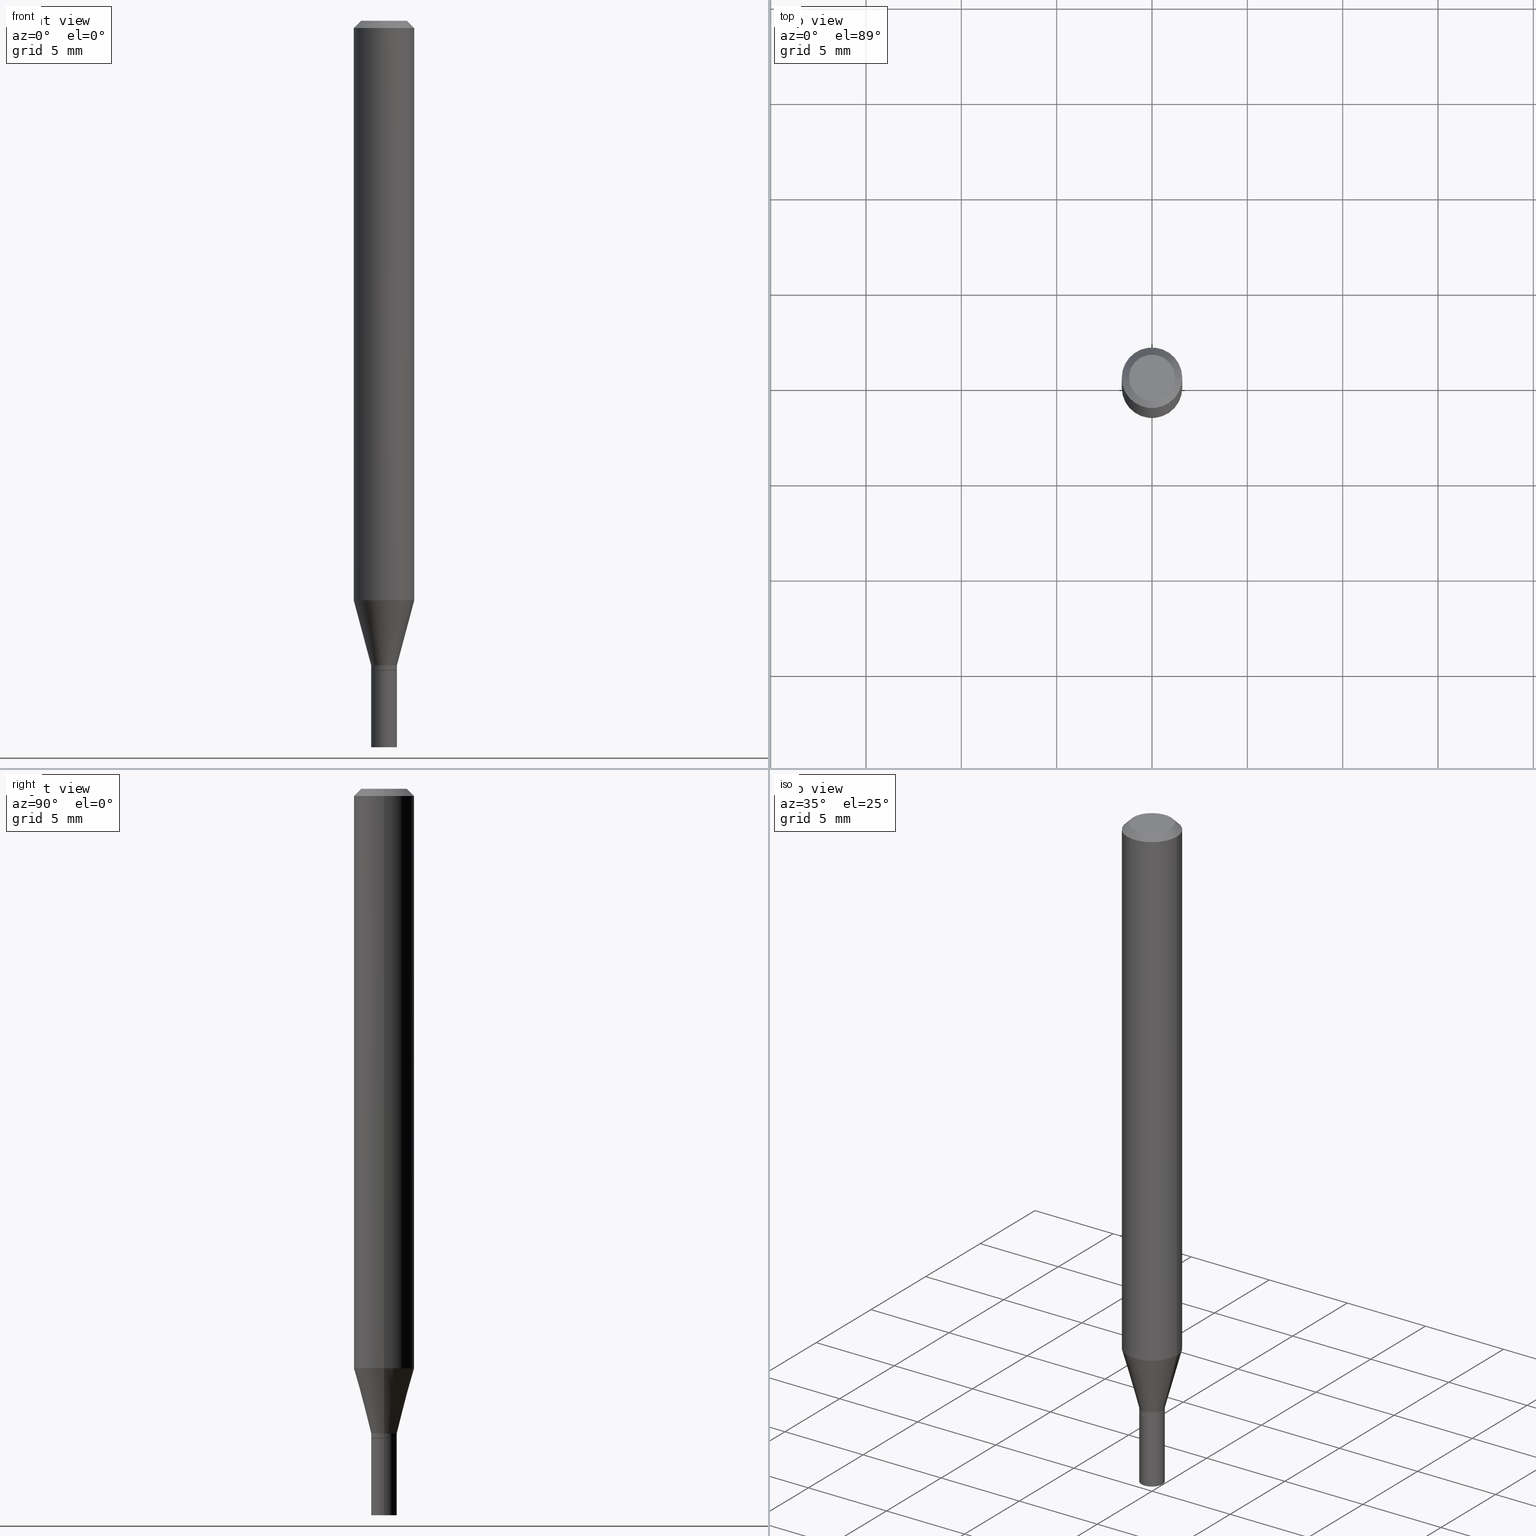
[diagram: canonical four-view strip — front | top / right | iso, engineering-drawing reading convention]
A machine part, canonical four-view strip (front | top / right | iso — engineering-drawing reading convention). The complete STEP part file that produces these views, byte-faithful:
ISO-10303-21;
HEADER;
FILE_DESCRIPTION (( 'STEP AP203' ),
    '1' );
FILE_NAME ('00562.STEP',
    '2024-03-19T21:43:18',
    ( '' ),
    ( '' ),
    'SwSTEP 2.0',
    'SolidWorks 2023',
    '' );
FILE_SCHEMA (( 'CONFIG_CONTROL_DESIGN' ));
ENDSEC;

DATA;
#1 = DIRECTION ( 'NONE',  ( 1.000000000000000000, -6.982962677686258822E-15, 0.000000000000000000 ) ) ;
#2 = DIRECTION ( 'NONE',  ( -2.445468806185136597E-29, 3.491481338843145583E-15, 1.000000000000000000 ) ) ;
#3 = ORIENTED_EDGE ( 'NONE', *, *, #406, .F. ) ;
#4 = VECTOR ( 'NONE', #144, 39.37007874015748143 ) ;
#5 = FACE_OUTER_BOUND ( 'NONE', #74, .T. ) ;
#6 = DIRECTION ( 'NONE',  ( 0.000000000000000000, 0.000000000000000000, 1.000000000000000000 ) ) ;
#7 = EDGE_LOOP ( 'NONE', ( #33, #29 ) ) ;
#8 = EDGE_CURVE ( 'NONE', #216, #94, #353, .T. ) ;
#9 = PERSON_AND_ORGANIZATION_ROLE ( 'creator' ) ;
#10 = APPROVAL_STATUS ( 'not_yet_approved' ) ;
#11 = CIRCLE ( 'NONE', #21, 0.02649999999999992292 ) ;
#12 = APPROVAL_PERSON_ORGANIZATION ( #46, #88, #38 ) ;
#13 = ORIENTED_EDGE ( 'NONE', *, *, #177, .F. ) ;
#14 = EDGE_CURVE ( 'NONE', #105, #390, #370, .T. ) ;
#15 = DIRECTION ( 'NONE',  ( 1.000000000000000000, -6.982962677686266711E-15, 0.000000000000000000 ) ) ;
#16 = LINE ( 'NONE', #441, #304 ) ;
#17 = ORIENTED_EDGE ( 'NONE', *, *, #153, .T. ) ;
#18 = ORIENTED_EDGE ( 'NONE', *, *, #71, .F. ) ;
#19 = DIRECTION ( 'NONE',  ( -1.000000000000000000, 6.982962677686266711E-15, 0.000000000000000000 ) ) ;
#20 = CC_DESIGN_DATE_AND_TIME_ASSIGNMENT ( #366, #190, ( #422 ) ) ;
#21 = AXIS2_PLACEMENT_3D ( 'NONE', #175, #95, #118 ) ;
#22 = AXIS2_PLACEMENT_3D ( 'NONE', #187, #6, #303 ) ;
#23 = ORIENTED_EDGE ( 'NONE', *, *, #429, .F. ) ;
#24 = CYLINDRICAL_SURFACE ( 'NONE', #448, 0.06250000000000000000 ) ;
#25 = DIRECTION ( 'NONE',  ( -2.445468806185136597E-29, 3.491481338843145583E-15, 1.000000000000000000 ) ) ;
#26 = LINE ( 'NONE', #169, #167 ) ;
#27 = ORIENTED_EDGE ( 'NONE', *, *, #128, .T. ) ;
#28 = CIRCLE ( 'NONE', #294, 0.02649999999999999925 ) ;
#29 = ORIENTED_EDGE ( 'NONE', *, *, #8, .F. ) ;
#30 = DIRECTION ( 'NONE',  ( -2.445468806185136597E-29, 3.491481338843145583E-15, 1.000000000000000000 ) ) ;
#31 = ORGANIZATION ( 'UNSPECIFIED', 'UNSPECIFIED', '' ) ;
#32 = CARTESIAN_POINT ( 'NONE',  ( 0.000000000000000000, 0.000000000000000000, 0.000000000000000000 ) ) ;
#33 = ORIENTED_EDGE ( 'NONE', *, *, #348, .F. ) ;
#34 = ORIENTED_EDGE ( 'NONE', *, *, #277, .T. ) ;
#35 = CC_DESIGN_PERSON_AND_ORGANIZATION_ASSIGNMENT ( #365, #271, ( #422 ) ) ;
#36 = AXIS2_PLACEMENT_3D ( 'NONE', #102, #447, #19 ) ;
#37 = CARTESIAN_POINT ( 'NONE',  ( 3.279373669094269136E-29, -4.682076475388659531E-15, -1.341000000000000192 ) ) ;
#38 = APPROVAL_ROLE ( '' ) ;
#39 = SECURITY_CLASSIFICATION_LEVEL ( 'unclassified' ) ;
#40 = CYLINDRICAL_SURFACE ( 'NONE', #189, 0.02649999999999992639 ) ;
#41 = DIRECTION ( 'NONE',  ( -2.445468806185136597E-29, 3.491481338843145583E-15, 1.000000000000000000 ) ) ;
#42 = CARTESIAN_POINT ( 'NONE',  ( 0.02649999999999992639, -4.832210172958911994E-15, -1.331000000000000183 ) ) ;
#43 = CC_DESIGN_PERSON_AND_ORGANIZATION_ASSIGNMENT ( #229, #226, ( #197 ) ) ;
#44 = CIRCLE ( 'NONE', #255, 0.06250000000000000000 ) ;
#45 =( NAMED_UNIT ( * ) PLANE_ANGLE_UNIT ( ) SI_UNIT ( $, .RADIAN. ) );
#46 = PERSON_AND_ORGANIZATION ( #298, #31 ) ;
#47 = COORDINATED_UNIVERSAL_TIME_OFFSET ( 5, 0, .BEHIND. ) ;
#48 = EDGE_LOOP ( 'NONE', ( #27, #136, #3, #13 ) ) ;
#49 = ADVANCED_FACE ( 'NONE', ( #234 ), #24, .T. ) ;
#50 = AXIS2_PLACEMENT_3D ( 'NONE', #400, #41, #135 ) ;
#51 = PRODUCT_DEFINITION_FORMATION_WITH_SPECIFIED_SOURCE ( 'ANY', '', #197, .NOT_KNOWN. ) ;
#52 = CYLINDRICAL_SURFACE ( 'NONE', #313, 0.06250000000000000000 ) ;
#53 = ORIENTED_EDGE ( 'NONE', *, *, #429, .T. ) ;
#54 = ORIENTED_EDGE ( 'NONE', *, *, #319, .F. ) ;
#55 = CARTESIAN_POINT ( 'NONE',  ( 0.000000000000000000, 0.000000000000000000, 0.000000000000000000 ) ) ;
#56 = AXIS2_PLACEMENT_3D ( 'NONE', #242, #347, #411 ) ;
#57 = ORIENTED_EDGE ( 'NONE', *, *, #62, .T. ) ;
#58 = CARTESIAN_POINT ( 'NONE',  ( -0.02649999999999992639, 1.882938249764260262E-16, -1.303517798917546247E-30 ) ) ;
#59 = ORIENTED_EDGE ( 'NONE', *, *, #98, .F. ) ;
#60 = DIRECTION ( 'NONE',  ( 1.000000000000000000, -6.982962677686258822E-15, 0.000000000000000000 ) ) ;
#61 = DIRECTION ( 'NONE',  ( 1.000000000000000000, -6.982962677686277755E-15, 0.000000000000000000 ) ) ;
#62 = EDGE_CURVE ( 'NONE', #253, #421, #210, .T. ) ;
#63 = EDGE_LOOP ( 'NONE', ( #238, #331, #385, #164 ) ) ;
#64 = AXIS2_PLACEMENT_3D ( 'NONE', #350, #389, #112 ) ;
#65 = VERTEX_POINT ( 'NONE', #305 ) ;
#66 = ORIENTED_EDGE ( 'NONE', *, *, #416, .F. ) ;
#67 = ORIENTED_EDGE ( 'NONE', *, *, #367, .F. ) ;
#68 = ORIENTED_EDGE ( 'NONE', *, *, #153, .F. ) ;
#69 = DIRECTION ( 'NONE',  ( -2.445468806185136597E-29, 3.491481338843145583E-15, 1.000000000000000000 ) ) ;
#70 = ORIENTED_EDGE ( 'NONE', *, *, #308, .F. ) ;
#71 = EDGE_CURVE ( 'NONE', #373, #65, #254, .T. ) ;
#72 = DIRECTION ( 'NONE',  ( -2.445468806185136597E-29, 3.491481338843145583E-15, 1.000000000000000000 ) ) ;
#73 = DIRECTION ( 'NONE',  ( -2.445468806185136597E-29, 3.491481338843145583E-15, 1.000000000000000000 ) ) ;
#74 = EDGE_LOOP ( 'NONE', ( #23, #444, #284, #356 ) ) ;
#75 = CARTESIAN_POINT ( 'NONE',  ( 3.668203209277705088E-31, -5.237222008264718399E-17, -0.01499999999999999944 ) ) ;
#76 = AXIS2_PLACEMENT_3D ( 'NONE', #414, #109, #344 ) ;
#77 = EDGE_LOOP ( 'NONE', ( #457, #53, #80, #67 ) ) ;
#78 = LOCAL_TIME ( 17, 43, 18.00000000000000000, #437 ) ;
#79 = PLANE ( 'NONE',  #276 ) ;
#80 = ORIENTED_EDGE ( 'NONE', *, *, #128, .F. ) ;
#81 = APPROVAL ( #332, 'UNSPECIFIED' ) ;
#82 = APPLICATION_PROTOCOL_DEFINITION ( 'international standard', 'config_control_design', 1994, #384 ) ;
#83 = DIRECTION ( 'NONE',  ( 1.000000000000000000, -6.982962677686277755E-15, 0.000000000000000000 ) ) ;
#84 = DIRECTION ( 'NONE',  ( 2.438088387897960049E-29, -3.491481338843145188E-15, -1.000000000000000000 ) ) ;
#85 = PERSON_AND_ORGANIZATION ( #298, #31 ) ;
#86 = VECTOR ( 'NONE', #352, 39.37007874015748143 ) ;
#87 = DIRECTION ( 'NONE',  ( -2.438088387897960049E-29, 3.491481338843145188E-15, 1.000000000000000000 ) ) ;
#88 = APPROVAL ( #398, 'UNSPECIFIED' ) ;
#89 = PERSON_AND_ORGANIZATION ( #298, #31 ) ;
#90 = CLOSED_SHELL ( 'NONE', ( #125, #107, #191, #289, #326, #235, #49, #299, #215, #205, #374, #184 ) ) ;
#91 = CIRCLE ( 'NONE', #354, 0.02599999999999999534 ) ;
#92 = AXIS2_PLACEMENT_3D ( 'NONE', #296, #459, #249 ) ;
#93 = LENGTH_MEASURE_WITH_UNIT ( LENGTH_MEASURE( 0.02539999999999999897 ), #334 );
#94 = VERTEX_POINT ( 'NONE', #163 ) ;
#95 = DIRECTION ( 'NONE',  ( -2.445468806185136597E-29, 3.491481338843145583E-15, 1.000000000000000000 ) ) ;
#96 = DIRECTION ( 'NONE',  ( 1.000000000000000000, -6.982962677686266711E-15, 4.876176775795935793E-29 ) ) ;
#97 = DIRECTION ( 'NONE',  ( -2.445468806185136877E-29, 3.491481338843145188E-15, 1.000000000000000000 ) ) ;
#98 = EDGE_CURVE ( 'NONE', #257, #200, #417, .T. ) ;
#99 = CARTESIAN_POINT ( 'NONE',  ( 3.668203209277704895E-29, -5.237222008264718177E-15, -1.500000000000000222 ) ) ;
#100 = VERTEX_POINT ( 'NONE', #245 ) ;
#101 = DIRECTION ( 'NONE',  ( -2.445468806185136877E-29, 3.491481338843145188E-15, 1.000000000000000000 ) ) ;
#102 = CARTESIAN_POINT ( 'NONE',  ( 3.668203209277705088E-31, -5.237222008264718399E-17, -0.01499999999999999944 ) ) ;
#103 = AXIS2_PLACEMENT_3D ( 'NONE', #120, #362, #449 ) ;
#104 = CIRCLE ( 'NONE', #419, 0.02649999999999999925 ) ;
#105 = VERTEX_POINT ( 'NONE', #346 ) ;
#106 = FACE_OUTER_BOUND ( 'NONE', #63, .T. ) ;
#107 = ADVANCED_FACE ( 'NONE', ( #106 ), #114, .T. ) ;
#108 = CARTESIAN_POINT ( 'NONE',  ( 3.279373669094269136E-29, -4.682076475388659531E-15, -1.341000000000000192 ) ) ;
#109 = DIRECTION ( 'NONE',  ( 2.438088387897960049E-29, -3.491481338843145188E-15, -1.000000000000000000 ) ) ;
#110 = VERTEX_POINT ( 'NONE', #351 ) ;
#111 = EDGE_LOOP ( 'NONE', ( #358, #203 ) ) ;
#112 = DIRECTION ( 'NONE',  ( 1.000000000000000000, -6.982962677686265922E-15, 4.876176775795935232E-29 ) ) ;
#113 = ORIENTED_EDGE ( 'NONE', *, *, #416, .T. ) ;
#114 = CONICAL_SURFACE ( 'NONE', #387, 0.02599999999999999534, 0.7853981633974739252 ) ;
#115 = EDGE_CURVE ( 'NONE', #218, #253, #318, .T. ) ;
#116 = ORIENTED_EDGE ( 'NONE', *, *, #177, .T. ) ;
#117 = DIRECTION ( 'NONE',  ( -2.445468806185136597E-29, 3.491481338843145583E-15, 1.000000000000000000 ) ) ;
#118 = DIRECTION ( 'NONE',  ( 1.000000000000000000, -6.982962677686261189E-15, 0.000000000000000000 ) ) ;
#119 = DIRECTION ( 'NONE',  ( 1.000000000000000000, -6.982962677686260400E-15, 0.000000000000000000 ) ) ;
#120 = CARTESIAN_POINT ( 'NONE',  ( -3.350520365439544480E-45, 4.783655101941405986E-31, 1.370093274943982539E-16 ) ) ;
#121 = CONICAL_SURFACE ( 'NONE', #36, 0.06250000000000000000, 0.7853981633974438381 ) ;
#122 = APPROVAL_DATE_TIME ( #402, #88 ) ;
#123 = AXIS2_PLACEMENT_3D ( 'NONE', #375, #73, #15 ) ;
#124 = CARTESIAN_POINT ( 'NONE',  ( 3.254918981032417030E-29, -4.647161662000227094E-15, -1.331000000000000183 ) ) ;
#125 = ADVANCED_FACE ( 'NONE', ( #206 ), #396, .T. ) ;
#126 = APPROVAL_ROLE ( '' ) ;
#127 = DIRECTION ( 'NONE',  ( -2.445468806185136597E-29, 3.491481338843145583E-15, 1.000000000000000000 ) ) ;
#128 = EDGE_CURVE ( 'NONE', #390, #105, #287, .T. ) ;
#129 = AXIS2_PLACEMENT_3D ( 'NONE', #267, #87, #464 ) ;
#130 = CONICAL_SURFACE ( 'NONE', #315, 0.02599999999999999534, 0.7853981633974739252 ) ;
#131 = CALENDAR_DATE ( 2024, 19, 3 ) ;
#132 = ORIENTED_EDGE ( 'NONE', *, *, #71, .T. ) ;
#133 = ORIENTED_EDGE ( 'NONE', *, *, #62, .F. ) ;
#134 = DIRECTION ( 'NONE',  ( 1.000000000000000000, -6.982962677686258822E-15, 0.000000000000000000 ) ) ;
#135 = DIRECTION ( 'NONE',  ( 1.000000000000000000, -6.982962677686267499E-15, 4.852736867747366768E-29 ) ) ;
#136 = ORIENTED_EDGE ( 'NONE', *, *, #159, .T. ) ;
#137 = CIRCLE ( 'NONE', #221, 0.02599999999999999534 ) ;
#138 = EDGE_CURVE ( 'NONE', #110, #218, #137, .T. ) ;
#139 = DIRECTION ( 'NONE',  ( -2.445468806185136597E-29, 3.491481338843145583E-15, 1.000000000000000000 ) ) ;
#140 = CARTESIAN_POINT ( 'NONE',  ( 0.000000000000000000, 0.000000000000000000, 0.000000000000000000 ) ) ;
#141 = CARTESIAN_POINT ( 'NONE',  ( 0.02649999999999999925, -4.867124986347346010E-15, -1.341000000000000192 ) ) ;
#142 = ORIENTED_EDGE ( 'NONE', *, *, #319, .T. ) ;
#143 = EDGE_CURVE ( 'NONE', #110, #257, #148, .T. ) ;
#144 = DIRECTION ( 'NONE',  ( -2.445468806185136877E-29, 3.491481338843145188E-15, 1.000000000000000000 ) ) ;
#145 = VECTOR ( 'NONE', #180, 39.37007874015748143 ) ;
#146 = FACE_OUTER_BOUND ( 'NONE', #317, .T. ) ;
#147 = CC_DESIGN_APPROVAL ( #88, ( #339 ) ) ;
#148 = LINE ( 'NONE', #423, #145 ) ;
#149 = CARTESIAN_POINT ( 'NONE',  ( 2.926360883044138788E-29, -4.178067774991542695E-15, -1.196646170927520458 ) ) ;
#150 = DIRECTION ( 'NONE',  ( 1.000000000000000000, -6.982962677686265922E-15, 4.876176775795935793E-29 ) ) ;
#151 = FACE_OUTER_BOUND ( 'NONE', #450, .T. ) ;
#152 = CYLINDRICAL_SURFACE ( 'NONE', #92, 0.02649999999999999925 ) ;
#153 = EDGE_CURVE ( 'NONE', #192, #65, #44, .T. ) ;
#154 = ADVANCED_BREP_SHAPE_REPRESENTATION ( '00562', ( #412, #413, #22 ), #453 ) ;
#155 = DIRECTION ( 'NONE',  ( 1.000000000000000000, -6.982962677686265922E-15, 4.876176775795935232E-29 ) ) ;
#156 = AXIS2_PLACEMENT_3D ( 'NONE', #219, #84, #432 ) ;
#157 = CARTESIAN_POINT ( 'NONE',  ( 3.254918981032417030E-29, -4.647161662000227094E-15, -1.331000000000000183 ) ) ;
#158 = DATE_AND_TIME ( #405, #440 ) ;
#159 = EDGE_CURVE ( 'NONE', #105, #192, #212, .T. ) ;
#160 = PERSON_AND_ORGANIZATION ( #298, #31 ) ;
#161 = VECTOR ( 'NONE', #101, 39.37007874015748143 ) ;
#162 = APPROVAL_PERSON_ORGANIZATION ( #160, #81, #126 ) ;
#163 = CARTESIAN_POINT ( 'NONE',  ( 0.02649999999999999925, -5.422270519223404655E-15, -1.500000000000000222 ) ) ;
#164 = ORIENTED_EDGE ( 'NONE', *, *, #115, .F. ) ;
#165 = EDGE_CURVE ( 'NONE', #421, #200, #228, .T. ) ;
#166 = ORIENTED_EDGE ( 'NONE', *, *, #445, .F. ) ;
#167 = VECTOR ( 'NONE', #213, 39.37007874015748143 ) ;
#168 = CC_DESIGN_APPROVAL ( #201, ( #422 ) ) ;
#169 = CARTESIAN_POINT ( 'NONE',  ( -0.02649999999999999925, 1.882938249764265439E-16, -1.303517798917549926E-30 ) ) ;
#170 = EDGE_CURVE ( 'NONE', #253, #257, #11, .T. ) ;
#171 = CARTESIAN_POINT ( 'NONE',  ( 0.06250000000000000000, -4.811533449433679005E-16, -0.01499999999999999944 ) ) ;
#172 = CLOSED_SHELL ( 'NONE', ( #265, #364, #456, #273 ) ) ;
#173 = CIRCLE ( 'NONE', #56, 0.02649999999999992292 ) ;
#174 = FACE_OUTER_BOUND ( 'NONE', #77, .T. ) ;
#175 = CARTESIAN_POINT ( 'NONE',  ( 3.278150934691176334E-29, -4.680330734719238028E-15, -1.340500000000000469 ) ) ;
#176 = ORIENTED_EDGE ( 'NONE', *, *, #165, .F. ) ;
#177 = EDGE_CURVE ( 'NONE', #390, #65, #397, .T. ) ;
#178 = ORIENTED_EDGE ( 'NONE', *, *, #251, .F. ) ;
#179 = DIRECTION ( 'NONE',  ( -2.445468806185136877E-29, 3.491481338843145188E-15, 1.000000000000000000 ) ) ;
#180 = DIRECTION ( 'NONE',  ( -0.7071067811865656694, 7.493145998870420424E-15, 0.7071067811865294761 ) ) ;
#181 = ORIENTED_EDGE ( 'NONE', *, *, #406, .T. ) ;
#182 = AXIS2_PLACEMENT_3D ( 'NONE', #275, #127, #119 ) ;
#183 = CIRCLE ( 'NONE', #123, 0.06250000000000000000 ) ;
#184 = ADVANCED_FACE ( 'NONE', ( #399 ), #40, .T. ) ;
#185 = FACE_OUTER_BOUND ( 'NONE', #349, .T. ) ;
#186 = DATE_AND_TIME ( #330, #261 ) ;
#187 = CARTESIAN_POINT ( 'NONE',  ( 0.000000000000000000, 0.000000000000000000, 0.000000000000000000 ) ) ;
#188 = FACE_OUTER_BOUND ( 'NONE', #460, .T. ) ;
#189 = AXIS2_PLACEMENT_3D ( 'NONE', #393, #72, #155 ) ;
#190 = DATE_TIME_ROLE ( 'creation_date' ) ;
#191 = ADVANCED_FACE ( 'NONE', ( #151 ), #282, .T. ) ;
#192 = VERTEX_POINT ( 'NONE', #222 ) ;
#193 = EDGE_LOOP ( 'NONE', ( #18, #178, #443, #17 ) ) ;
#194 = CALENDAR_DATE ( 2024, 19, 3 ) ;
#195 = FACE_OUTER_BOUND ( 'NONE', #7, .T. ) ;
#196 = CARTESIAN_POINT ( 'NONE',  ( 0.02599999999999999534, -4.863633505008502214E-15, -1.341000000000000192 ) ) ;
#197 = PRODUCT ( '00562', '00562', '', ( #336 ) ) ;
#198 = DIRECTION ( 'NONE',  ( 0.7071067811865443531, -7.319954787623245001E-15, -0.7071067811865506814 ) ) ;
#199 = VECTOR ( 'NONE', #179, 39.37007874015748143 ) ;
#200 = VERTEX_POINT ( 'NONE', #292 ) ;
#201 = APPROVAL ( #10, 'UNSPECIFIED' ) ;
#202 = DIRECTION ( 'NONE',  ( -0.2588190451025211836, 5.211531920934547886E-15, 0.9659258262890679791 ) ) ;
#203 = ORIENTED_EDGE ( 'NONE', *, *, #138, .F. ) ;
#204 = AXIS2_PLACEMENT_3D ( 'NONE', #157, #335, #428 ) ;
#205 = ADVANCED_FACE ( 'NONE', ( #286 ), #79, .F. ) ;
#206 = FACE_OUTER_BOUND ( 'NONE', #376, .T. ) ;
#207 = EDGE_LOOP ( 'NONE', ( #59, #250, #57, #345 ) ) ;
#208 = ORIENTED_EDGE ( 'NONE', *, *, #348, .T. ) ;
#209 = ORIENTED_EDGE ( 'NONE', *, *, #285, .T. ) ;
#210 = LINE ( 'NONE', #281, #4 ) ;
#211 = PLANE ( 'NONE',  #76 ) ;
#212 = LINE ( 'NONE', #248, #86 ) ;
#213 = DIRECTION ( 'NONE',  ( -2.445468806185136877E-29, 3.491481338843145188E-15, 1.000000000000000000 ) ) ;
#214 = ORIENTED_EDGE ( 'NONE', *, *, #277, .F. ) ;
#215 = ADVANCED_FACE ( 'NONE', ( #188 ), #288, .F. ) ;
#216 = VERTEX_POINT ( 'NONE', #436 ) ;
#217 = DESIGN_CONTEXT ( 'detailed design', #314, 'design' ) ;
#218 = VERTEX_POINT ( 'NONE', #196 ) ;
#219 = CARTESIAN_POINT ( 'NONE',  ( 3.316907271900976096E-16, 0.04749999999999999362, -9.734069984785028182E-17 ) ) ;
#220 = VERTEX_POINT ( 'NONE', #329 ) ;
#221 = AXIS2_PLACEMENT_3D ( 'NONE', #312, #69, #383 ) ;
#222 = CARTESIAN_POINT ( 'NONE',  ( -0.06250000000000000000, -1.671130787687032468E-15, -0.01499999999999999944 ) ) ;
#223 = CARTESIAN_POINT ( 'NONE',  ( 0.02649999999999992639, -4.832210172958911994E-15, -1.331000000000000183 ) ) ;
#224 = APPROVAL_DATE_TIME ( #158, #81 ) ;
#225 = DIRECTION ( 'NONE',  ( -2.438088387897960049E-29, 3.491481338843145188E-15, 1.000000000000000000 ) ) ;
#226 = PERSON_AND_ORGANIZATION_ROLE ( 'design_owner' ) ;
#227 = CARTESIAN_POINT ( 'NONE',  ( 3.279373669094269136E-29, -4.682076475388659531E-15, -1.341000000000000192 ) ) ;
#228 = CIRCLE ( 'NONE', #407, 0.02649999999999992639 ) ;
#229 = PERSON_AND_ORGANIZATION ( #298, #31 ) ;
#230 = CC_DESIGN_APPROVAL ( #81, ( #51 ) ) ;
#231 = CC_DESIGN_PERSON_AND_ORGANIZATION_ASSIGNMENT ( #368, #263, ( #51 ) ) ;
#232 =( NAMED_UNIT ( * ) SI_UNIT ( $, .STERADIAN. ) SOLID_ANGLE_UNIT ( ) );
#233 = COORDINATED_UNIVERSAL_TIME_OFFSET ( 5, 0, .BEHIND. ) ;
#234 = FACE_OUTER_BOUND ( 'NONE', #278, .T. ) ;
#235 = ADVANCED_FACE ( 'NONE', ( #5 ), #404, .T. ) ;
#236 = CONICAL_SURFACE ( 'NONE', #182, 0.02649999999999992639, 0.2617993877991499074 ) ;
#237 =( CONVERSION_BASED_UNIT ( 'INCH', #93 ) LENGTH_UNIT ( ) NAMED_UNIT ( #357 ) );
#238 = ORIENTED_EDGE ( 'NONE', *, *, #355, .T. ) ;
#239 = LINE ( 'NONE', #243, #380 ) ;
#240 = CARTESIAN_POINT ( 'NONE',  ( 2.926360883044138788E-29, -4.178067774991542695E-15, -1.196646170927520458 ) ) ;
#241 = CC_DESIGN_PERSON_AND_ORGANIZATION_ASSIGNMENT ( #293, #302, ( #339 ) ) ;
#242 = CARTESIAN_POINT ( 'NONE',  ( 3.278150934691176334E-29, -4.680330734719238028E-15, -1.340500000000000469 ) ) ;
#243 = CARTESIAN_POINT ( 'NONE',  ( -0.06250000000000000000, 3.840629472727444916E-16, -0.01499999999999999944 ) ) ;
#244 = ORIENTED_EDGE ( 'NONE', *, *, #285, .F. ) ;
#245 = CARTESIAN_POINT ( 'NONE',  ( -0.04749999999999999362, 3.578768372314212971E-16, 1.370093274943958627E-16 ) ) ;
#246 = AXIS2_PLACEMENT_3D ( 'NONE', #75, #320, #461 ) ;
#247 = EDGE_LOOP ( 'NONE', ( #208, #34, #66, #166 ) ) ;
#248 = CARTESIAN_POINT ( 'NONE',  ( -0.06250000000000000000, 4.440892098500626162E-16, -3.074334431409316114E-30 ) ) ;
#249 = DIRECTION ( 'NONE',  ( 1.000000000000000000, -6.982962677686266711E-15, 4.876176775795935793E-29 ) ) ;
#250 = ORIENTED_EDGE ( 'NONE', *, *, #308, .T. ) ;
#251 = EDGE_CURVE ( 'NONE', #100, #373, #452, .T. ) ;
#252 = DIRECTION ( 'NONE',  ( -2.445468806185136597E-29, 3.491481338843145583E-15, 1.000000000000000000 ) ) ;
#253 = VERTEX_POINT ( 'NONE', #309 ) ;
#254 = LINE ( 'NONE', #171, #328 ) ;
#255 = AXIS2_PLACEMENT_3D ( 'NONE', #454, #321, #462 ) ;
#256 = EDGE_LOOP ( 'NONE', ( #409, #420, #458, #70 ) ) ;
#257 = VERTEX_POINT ( 'NONE', #424 ) ;
#258 = CARTESIAN_POINT ( 'NONE',  ( 3.279373669094269136E-29, -4.682076475388659531E-15, -1.341000000000000192 ) ) ;
#259 = CIRCLE ( 'NONE', #50, 0.04749999999999999362 ) ;
#260 = CARTESIAN_POINT ( 'NONE',  ( 0.06250000000000000000, -4.364351673553916694E-16, 3.047610484872459871E-30 ) ) ;
#261 = LOCAL_TIME ( 17, 43, 18.00000000000000000, #47 ) ;
#262 = DATE_TIME_ROLE ( 'classification_date' ) ;
#263 = PERSON_AND_ORGANIZATION_ROLE ( 'design_supplier' ) ;
#264 = CARTESIAN_POINT ( 'NONE',  ( 0.04749999999999999362, -4.035134999187576158E-16, 1.370093274944008177E-16 ) ) ;
#265 = ADVANCED_FACE ( 'NONE', ( #463 ), #391, .T. ) ;
#266 = COORDINATED_UNIVERSAL_TIME_OFFSET ( 5, 0, .BEHIND. ) ;
#267 = CARTESIAN_POINT ( 'NONE',  ( 3.576687321579069994E-29, -5.368277968210015545E-15, -1.500000000000000222 ) ) ;
#268 = AXIS2_PLACEMENT_3D ( 'NONE', #240, #377, #342 ) ;
#269 = DIRECTION ( 'NONE',  ( -2.445468806185136597E-29, 3.491481338843145583E-15, 1.000000000000000000 ) ) ;
#270 = DIRECTION ( 'NONE',  ( -2.445468806185136597E-29, 3.491481338843145583E-15, 1.000000000000000000 ) ) ;
#271 = PERSON_AND_ORGANIZATION_ROLE ( 'creator' ) ;
#272 = DIRECTION ( 'NONE',  ( -2.445468806185136597E-29, 3.491481338843145583E-15, 1.000000000000000000 ) ) ;
#273 = ADVANCED_FACE ( 'NONE', ( #146 ), #211, .F. ) ;
#274 = PLANE ( 'NONE',  #129 ) ;
#275 = CARTESIAN_POINT ( 'NONE',  ( 3.254918981032417030E-29, -4.647161662000227094E-15, -1.331000000000000183 ) ) ;
#276 = AXIS2_PLACEMENT_3D ( 'NONE', #37, #225, #150 ) ;
#277 = EDGE_CURVE ( 'NONE', #216, #220, #26, .T. ) ;
#278 = EDGE_LOOP ( 'NONE', ( #300, #340, #116, #68 ) ) ;
#279 = ORIENTED_EDGE ( 'NONE', *, *, #98, .T. ) ;
#280 = VERTEX_POINT ( 'NONE', #141 ) ;
#281 = CARTESIAN_POINT ( 'NONE',  ( 0.02649999999999992639, -1.850485109586855413E-16, 1.292186845585919279E-30 ) ) ;
#282 = CONICAL_SURFACE ( 'NONE', #246, 0.06250000000000000000, 0.7853981633974438381 ) ;
#283 = LOCAL_TIME ( 17, 43, 18.00000000000000000, #266 ) ;
#284 = ORIENTED_EDGE ( 'NONE', *, *, #367, .T. ) ;
#285 = EDGE_CURVE ( 'NONE', #373, #100, #259, .T. ) ;
#286 = FACE_OUTER_BOUND ( 'NONE', #111, .T. ) ;
#287 = CIRCLE ( 'NONE', #394, 0.06250000000000000000 ) ;
#288 = PLANE ( 'NONE',  #156 ) ;
#289 = ADVANCED_FACE ( 'NONE', ( #372 ), #52, .T. ) ;
#290 = DIRECTION ( 'NONE',  ( 0.2588190451025211836, 1.565188264969622559E-15, 0.9659258262890679791 ) ) ;
#291 = ORIENTED_EDGE ( 'NONE', *, *, #451, .F. ) ;
#292 = CARTESIAN_POINT ( 'NONE',  ( -0.02649999999999992639, -4.096423201082640425E-15, -1.331000000000000183 ) ) ;
#293 = PERSON_AND_ORGANIZATION ( #298, #31 ) ;
#294 = AXIS2_PLACEMENT_3D ( 'NONE', #361, #2, #83 ) ;
#295 = CC_DESIGN_SECURITY_CLASSIFICATION ( #339, ( #51 ) ) ;
#296 = CARTESIAN_POINT ( 'NONE',  ( 0.000000000000000000, 0.000000000000000000, 0.000000000000000000 ) ) ;
#297 = APPROVAL_ROLE ( '' ) ;
#298 = PERSON ( 'UNSPECIFIED', 'UNSPECIFIED', 'UNSPECIFIED', ('UNSPECIFIED'), ('UNSPECIFIED'), ('UNSPECIFIED') ) ;
#299 = ADVANCED_FACE ( 'NONE', ( #418 ), #121, .T. ) ;
#300 = ORIENTED_EDGE ( 'NONE', *, *, #159, .F. ) ;
#301 = CARTESIAN_POINT ( 'NONE',  ( 0.02599999999999999534, -4.863633505008502214E-15, -1.341000000000000192 ) ) ;
#302 = PERSON_AND_ORGANIZATION_ROLE ( 'classification_officer' ) ;
#303 = DIRECTION ( 'NONE',  ( 1.000000000000000000, 0.000000000000000000, 0.000000000000000000 ) ) ;
#304 = VECTOR ( 'NONE', #97, 39.37007874015748143 ) ;
#305 = CARTESIAN_POINT ( 'NONE',  ( 0.06250000000000000000, -4.888073874380388472E-16, -0.01499999999999999944 ) ) ;
#306 = DIRECTION ( 'NONE',  ( 1.000000000000000000, -6.982962677686260400E-15, 0.000000000000000000 ) ) ;
#307 = AXIS2_PLACEMENT_3D ( 'NONE', #99, #272, #415 ) ;
#308 = EDGE_CURVE ( 'NONE', #257, #253, #173, .T. ) ;
#309 = CARTESIAN_POINT ( 'NONE',  ( 0.02649999999999992292, -4.865379245677923717E-15, -1.340500000000000469 ) ) ;
#310 = CARTESIAN_POINT ( 'NONE',  ( 3.279373669094269136E-29, -4.682076475388659531E-15, -1.341000000000000192 ) ) ;
#311 = DIRECTION ( 'NONE',  ( -2.445468806185136597E-29, 3.491481338843145583E-15, 1.000000000000000000 ) ) ;
#312 = CARTESIAN_POINT ( 'NONE',  ( 3.279373669094269136E-29, -4.682076475388659531E-15, -1.341000000000000192 ) ) ;
#313 = AXIS2_PLACEMENT_3D ( 'NONE', #55, #25, #378 ) ;
#314 = APPLICATION_CONTEXT ( 'configuration controlled 3d designs of mechanical parts and assemblies' ) ;
#315 = AXIS2_PLACEMENT_3D ( 'NONE', #427, #117, #1 ) ;
#316 = DIRECTION ( 'NONE',  ( 1.000000000000000000, -6.982962677686270655E-15, 0.000000000000000000 ) ) ;
#317 = EDGE_LOOP ( 'NONE', ( #113, #142 ) ) ;
#318 = LINE ( 'NONE', #301, #338 ) ;
#319 = EDGE_CURVE ( 'NONE', #220, #280, #322, .T. ) ;
#320 = DIRECTION ( 'NONE',  ( 2.445468806185136597E-29, -3.491481338843145583E-15, -1.000000000000000000 ) ) ;
#321 = DIRECTION ( 'NONE',  ( -2.445468806185136597E-29, 3.491481338843145583E-15, 1.000000000000000000 ) ) ;
#322 = CIRCLE ( 'NONE', #426, 0.02649999999999999925 ) ;
#323 = AXIS2_PLACEMENT_3D ( 'NONE', #124, #270, #306 ) ;
#324 = CALENDAR_DATE ( 2024, 19, 3 ) ;
#325 = APPLICATION_PROTOCOL_DEFINITION ( 'international standard', 'config_control_design', 1994, #314 ) ;
#326 = ADVANCED_FACE ( 'NONE', ( #174 ), #236, .T. ) ;
#327 = FACE_OUTER_BOUND ( 'NONE', #256, .T. ) ;
#328 = VECTOR ( 'NONE', #198, 39.37007874015748143 ) ;
#329 = CARTESIAN_POINT ( 'NONE',  ( -0.02649999999999999925, -4.771355416850261743E-15, -1.341000000000000192 ) ) ;
#330 = CALENDAR_DATE ( 2024, 19, 3 ) ;
#331 = ORIENTED_EDGE ( 'NONE', *, *, #143, .T. ) ;
#332 = APPROVAL_STATUS ( 'not_yet_approved' ) ;
#333 = CC_DESIGN_DATE_AND_TIME_ASSIGNMENT ( #186, #262, ( #339 ) ) ;
#334 =( LENGTH_UNIT ( ) NAMED_UNIT ( * ) SI_UNIT ( $, .METRE. ) );
#335 = DIRECTION ( 'NONE',  ( -2.445468806185136597E-29, 3.491481338843145583E-15, 1.000000000000000000 ) ) ;
#336 = MECHANICAL_CONTEXT ( 'NONE', #384, 'mechanical' ) ;
#337 = ORIENTED_EDGE ( 'NONE', *, *, #8, .T. ) ;
#338 = VECTOR ( 'NONE', #435, 39.37007874015748143 ) ;
#339 = SECURITY_CLASSIFICATION ( '', '', #39 ) ;
#340 = ORIENTED_EDGE ( 'NONE', *, *, #14, .T. ) ;
#341 = CC_DESIGN_PERSON_AND_ORGANIZATION_ASSIGNMENT ( #89, #9, ( #51 ) ) ;
#342 = DIRECTION ( 'NONE',  ( 1.000000000000000000, -6.982962677686270655E-15, 0.000000000000000000 ) ) ;
#343 = DIRECTION ( 'NONE',  ( 1.000000000000000000, -6.982962677686266711E-15, 4.876176775795935793E-29 ) ) ;
#344 = DIRECTION ( 'NONE',  ( -1.000000000000000000, 6.982962677686265922E-15, -4.876176775795935793E-29 ) ) ;
#345 = ORIENTED_EDGE ( 'NONE', *, *, #403, .F. ) ;
#346 = CARTESIAN_POINT ( 'NONE',  ( -0.06250000000000000000, -3.733978565141479290E-15, -1.196646170927520458 ) ) ;
#347 = DIRECTION ( 'NONE',  ( -2.445468806185136597E-29, 3.491481338843145583E-15, 1.000000000000000000 ) ) ;
#348 = EDGE_CURVE ( 'NONE', #94, #216, #28, .T. ) ;
#349 = EDGE_LOOP ( 'NONE', ( #214, #337, #410, #54 ) ) ;
#350 = CARTESIAN_POINT ( 'NONE',  ( 0.000000000000000000, 0.000000000000000000, 0.000000000000000000 ) ) ;
#351 = CARTESIAN_POINT ( 'NONE',  ( -0.02599999999999999534, -4.494686136916922907E-15, -1.341000000000000192 ) ) ;
#352 = DIRECTION ( 'NONE',  ( -2.445468806185136877E-29, 3.491481338843145188E-15, 1.000000000000000000 ) ) ;
#353 = CIRCLE ( 'NONE', #307, 0.02649999999999999925 ) ;
#354 = AXIS2_PLACEMENT_3D ( 'NONE', #227, #446, #134 ) ;
#355 = EDGE_CURVE ( 'NONE', #218, #110, #91, .T. ) ;
#356 = ORIENTED_EDGE ( 'NONE', *, *, #14, .F. ) ;
#357 = DIMENSIONAL_EXPONENTS ( 1.000000000000000000, 0.000000000000000000, 0.000000000000000000, 0.000000000000000000, 0.000000000000000000, 0.000000000000000000, 0.000000000000000000 ) ;
#358 = ORIENTED_EDGE ( 'NONE', *, *, #355, .F. ) ;
#359 = ORIENTED_EDGE ( 'NONE', *, *, #170, .T. ) ;
#360 = APPROVAL_PERSON_ORGANIZATION ( #85, #201, #297 ) ;
#361 = CARTESIAN_POINT ( 'NONE',  ( 3.668203209277704895E-29, -5.237222008264718177E-15, -1.500000000000000222 ) ) ;
#362 = DIRECTION ( 'NONE',  ( -2.445468806185136597E-29, 3.491481338843145583E-15, 1.000000000000000000 ) ) ;
#363 = DATE_AND_TIME ( #131, #388 ) ;
#364 = ADVANCED_FACE ( 'NONE', ( #195 ), #274, .F. ) ;
#365 = PERSON_AND_ORGANIZATION ( #298, #31 ) ;
#366 = DATE_AND_TIME ( #194, #78 ) ;
#367 = EDGE_CURVE ( 'NONE', #421, #390, #466, .T. ) ;
#368 = PERSON_AND_ORGANIZATION ( #298, #31 ) ;
#369 = DIRECTION ( 'NONE',  ( 1.000000000000000000, -6.982962677686277755E-15, 0.000000000000000000 ) ) ;
#370 = CIRCLE ( 'NONE', #268, 0.06250000000000000000 ) ;
#371 = VECTOR ( 'NONE', #202, 39.37007874015748854 ) ;
#372 = FACE_OUTER_BOUND ( 'NONE', #48, .T. ) ;
#373 = VERTEX_POINT ( 'NONE', #264 ) ;
#374 = ADVANCED_FACE ( 'NONE', ( #327 ), #130, .T. ) ;
#375 = CARTESIAN_POINT ( 'NONE',  ( 3.668203209277705088E-31, -5.237222008264718399E-17, -0.01499999999999999944 ) ) ;
#376 = EDGE_LOOP ( 'NONE', ( #359, #279, #176, #133 ) ) ;
#377 = DIRECTION ( 'NONE',  ( -2.445468806185136597E-29, 3.491481338843145583E-15, 1.000000000000000000 ) ) ;
#378 = DIRECTION ( 'NONE',  ( 1.000000000000000000, -6.982962677686266711E-15, 4.876176775795935793E-29 ) ) ;
#379 = DIRECTION ( 'NONE',  ( -0.7071067811865443531, 2.468850131082223534E-15, -0.7071067811865506814 ) ) ;
#380 = VECTOR ( 'NONE', #379, 39.37007874015748143 ) ;
#381 = CARTESIAN_POINT ( 'NONE',  ( 3.254918981032417030E-29, -4.647161662000227094E-15, -1.331000000000000183 ) ) ;
#382 = DIRECTION ( 'NONE',  ( -2.445468806185136597E-29, 3.491481338843145583E-15, 1.000000000000000000 ) ) ;
#383 = DIRECTION ( 'NONE',  ( 1.000000000000000000, -6.982962677686258822E-15, 0.000000000000000000 ) ) ;
#384 = APPLICATION_CONTEXT ( 'configuration controlled 3d designs of mechanical parts and assemblies' ) ;
#385 = ORIENTED_EDGE ( 'NONE', *, *, #170, .F. ) ;
#386 = DIRECTION ( 'NONE',  ( 1.000000000000000000, -6.982962677686260400E-15, 0.000000000000000000 ) ) ;
#387 = AXIS2_PLACEMENT_3D ( 'NONE', #310, #382, #60 ) ;
#388 = LOCAL_TIME ( 17, 43, 18.00000000000000000, #433 ) ;
#389 = DIRECTION ( 'NONE',  ( -2.445468806185136597E-29, 3.491481338843145583E-15, 1.000000000000000000 ) ) ;
#390 = VERTEX_POINT ( 'NONE', #395 ) ;
#391 = CYLINDRICAL_SURFACE ( 'NONE', #439, 0.02649999999999999925 ) ;
#392 = PRODUCT_DEFINITION_SHAPE ( 'NONE', 'NONE',  #422 ) ;
#393 = CARTESIAN_POINT ( 'NONE',  ( 0.000000000000000000, 0.000000000000000000, 0.000000000000000000 ) ) ;
#394 = AXIS2_PLACEMENT_3D ( 'NONE', #149, #252, #316 ) ;
#395 = CARTESIAN_POINT ( 'NONE',  ( 0.06250000000000000000, -4.614502942346933576E-15, -1.196646170927520458 ) ) ;
#396 = CYLINDRICAL_SURFACE ( 'NONE', #64, 0.02649999999999992639 ) ;
#397 = LINE ( 'NONE', #260, #199 ) ;
#398 = APPROVAL_STATUS ( 'not_yet_approved' ) ;
#399 = FACE_OUTER_BOUND ( 'NONE', #207, .T. ) ;
#400 = CARTESIAN_POINT ( 'NONE',  ( -3.350520365439544480E-45, 4.783655101941405986E-31, 1.370093274943982539E-16 ) ) ;
#401 = LINE ( 'NONE', #408, #371 ) ;
#402 = DATE_AND_TIME ( #324, #283 ) ;
#403 = EDGE_CURVE ( 'NONE', #200, #421, #431, .T. ) ;
#404 = CONICAL_SURFACE ( 'NONE', #204, 0.02649999999999992639, 0.2617993877991499074 ) ;
#405 = CALENDAR_DATE ( 2024, 19, 3 ) ;
#406 = EDGE_CURVE ( 'NONE', #65, #192, #183, .T. ) ;
#407 = AXIS2_PLACEMENT_3D ( 'NONE', #381, #30, #386 ) ;
#408 = CARTESIAN_POINT ( 'NONE',  ( -0.02649999999999992639, -4.458867837023800771E-15, -1.331000000000000183 ) ) ;
#409 = ORIENTED_EDGE ( 'NONE', *, *, #143, .F. ) ;
#410 = ORIENTED_EDGE ( 'NONE', *, *, #445, .T. ) ;
#411 = DIRECTION ( 'NONE',  ( 1.000000000000000000, -6.982962677686261189E-15, 0.000000000000000000 ) ) ;
#412 = MANIFOLD_SOLID_BREP ( 'Body-Move/Copy2[1]', #172 ) ;
#413 = MANIFOLD_SOLID_BREP ( 'Body-Move/Copy2[2]', #90 ) ;
#414 = CARTESIAN_POINT ( 'NONE',  ( 1.850485109587188213E-16, 0.02649999999999531550, -1.341000000000000192 ) ) ;
#415 = DIRECTION ( 'NONE',  ( 1.000000000000000000, -6.982962677686277755E-15, 0.000000000000000000 ) ) ;
#416 = EDGE_CURVE ( 'NONE', #280, #220, #104, .T. ) ;
#417 = LINE ( 'NONE', #58, #161 ) ;
#418 = FACE_OUTER_BOUND ( 'NONE', #193, .T. ) ;
#419 = AXIS2_PLACEMENT_3D ( 'NONE', #258, #269, #369 ) ;
#420 = ORIENTED_EDGE ( 'NONE', *, *, #138, .T. ) ;
#421 = VERTEX_POINT ( 'NONE', #42 ) ;
#422 = PRODUCT_DEFINITION ( 'UNKNOWN', '', #51, #217 ) ;
#423 = CARTESIAN_POINT ( 'NONE',  ( -0.02599999999999999534, -4.497335364091034108E-15, -1.341000000000000192 ) ) ;
#424 = CARTESIAN_POINT ( 'NONE',  ( -0.02649999999999992292, -4.492036909742812495E-15, -1.340500000000000469 ) ) ;
#425 = ORIENTED_EDGE ( 'NONE', *, *, #251, .T. ) ;
#426 = AXIS2_PLACEMENT_3D ( 'NONE', #108, #311, #61 ) ;
#427 = CARTESIAN_POINT ( 'NONE',  ( 3.279373669094269136E-29, -4.682076475388659531E-15, -1.341000000000000192 ) ) ;
#428 = DIRECTION ( 'NONE',  ( 1.000000000000000000, -6.982962677686260400E-15, 0.000000000000000000 ) ) ;
#429 = EDGE_CURVE ( 'NONE', #200, #105, #401, .T. ) ;
#430 = SHAPE_DEFINITION_REPRESENTATION ( #392, #154 ) ;
#431 = CIRCLE ( 'NONE', #323, 0.02649999999999992639 ) ;
#432 = DIRECTION ( 'NONE',  ( -1.000000000000000000, 6.982962677686265922E-15, -4.876176775795935793E-29 ) ) ;
#433 = COORDINATED_UNIVERSAL_TIME_OFFSET ( 5, 0, .BEHIND. ) ;
#434 = UNCERTAINTY_MEASURE_WITH_UNIT (LENGTH_MEASURE( 1.000000000000000082E-05 ), #237, 'distance_accuracy_value', 'NONE');
#435 = DIRECTION ( 'NONE',  ( 0.7071067811865656694, -2.468850131082446387E-15, 0.7071067811865294761 ) ) ;
#436 = CARTESIAN_POINT ( 'NONE',  ( -0.02649999999999999925, -4.771355416850261743E-15, -1.500000000000000222 ) ) ;
#437 = COORDINATED_UNIVERSAL_TIME_OFFSET ( 5, 0, .BEHIND. ) ;
#438 = VECTOR ( 'NONE', #290, 39.37007874015748854 ) ;
#439 = AXIS2_PLACEMENT_3D ( 'NONE', #32, #139, #96 ) ;
#440 = LOCAL_TIME ( 17, 43, 18.00000000000000000, #233 ) ;
#441 = CARTESIAN_POINT ( 'NONE',  ( 0.02649999999999999925, -1.850485109586860590E-16, 1.292186845585922957E-30 ) ) ;
#442 = APPROVAL_DATE_TIME ( #363, #201 ) ;
#443 = ORIENTED_EDGE ( 'NONE', *, *, #451, .T. ) ;
#444 = ORIENTED_EDGE ( 'NONE', *, *, #403, .T. ) ;
#445 = EDGE_CURVE ( 'NONE', #94, #280, #16, .T. ) ;
#446 = DIRECTION ( 'NONE',  ( -2.445468806185136597E-29, 3.491481338843145583E-15, 1.000000000000000000 ) ) ;
#447 = DIRECTION ( 'NONE',  ( 2.445468806185136597E-29, -3.491481338843145583E-15, -1.000000000000000000 ) ) ;
#448 = AXIS2_PLACEMENT_3D ( 'NONE', #140, #455, #343 ) ;
#449 = DIRECTION ( 'NONE',  ( 1.000000000000000000, -6.982962677686267499E-15, 4.852736867747366768E-29 ) ) ;
#450 = EDGE_LOOP ( 'NONE', ( #244, #132, #181, #291 ) ) ;
#451 = EDGE_CURVE ( 'NONE', #100, #192, #239, .T. ) ;
#452 = CIRCLE ( 'NONE', #103, 0.04749999999999999362 ) ;
#453 =( GEOMETRIC_REPRESENTATION_CONTEXT ( 3 ) GLOBAL_UNCERTAINTY_ASSIGNED_CONTEXT ( ( #434 ) ) GLOBAL_UNIT_ASSIGNED_CONTEXT ( ( #237, #45, #232 ) ) REPRESENTATION_CONTEXT ( 'NONE', 'WORKASPACE' ) );
#454 = CARTESIAN_POINT ( 'NONE',  ( 3.668203209277705088E-31, -5.237222008264718399E-17, -0.01499999999999999944 ) ) ;
#455 = DIRECTION ( 'NONE',  ( -2.445468806185136597E-29, 3.491481338843145583E-15, 1.000000000000000000 ) ) ;
#456 = ADVANCED_FACE ( 'NONE', ( #185 ), #152, .T. ) ;
#457 = ORIENTED_EDGE ( 'NONE', *, *, #165, .T. ) ;
#458 = ORIENTED_EDGE ( 'NONE', *, *, #115, .T. ) ;
#459 = DIRECTION ( 'NONE',  ( -2.445468806185136597E-29, 3.491481338843145583E-15, 1.000000000000000000 ) ) ;
#460 = EDGE_LOOP ( 'NONE', ( #425, #209 ) ) ;
#461 = DIRECTION ( 'NONE',  ( -1.000000000000000000, 6.982962677686266711E-15, 0.000000000000000000 ) ) ;
#462 = DIRECTION ( 'NONE',  ( 1.000000000000000000, -6.982962677686266711E-15, 0.000000000000000000 ) ) ;
#463 = FACE_OUTER_BOUND ( 'NONE', #247, .T. ) ;
#464 = DIRECTION ( 'NONE',  ( 1.000000000000000000, -6.982962677686265922E-15, 4.876176775795935793E-29 ) ) ;
#465 = PRODUCT_RELATED_PRODUCT_CATEGORY ( 'detail', '', ( #197 ) ) ;
#466 = LINE ( 'NONE', #223, #438 ) ;
ENDSEC;
END-ISO-10303-21;
